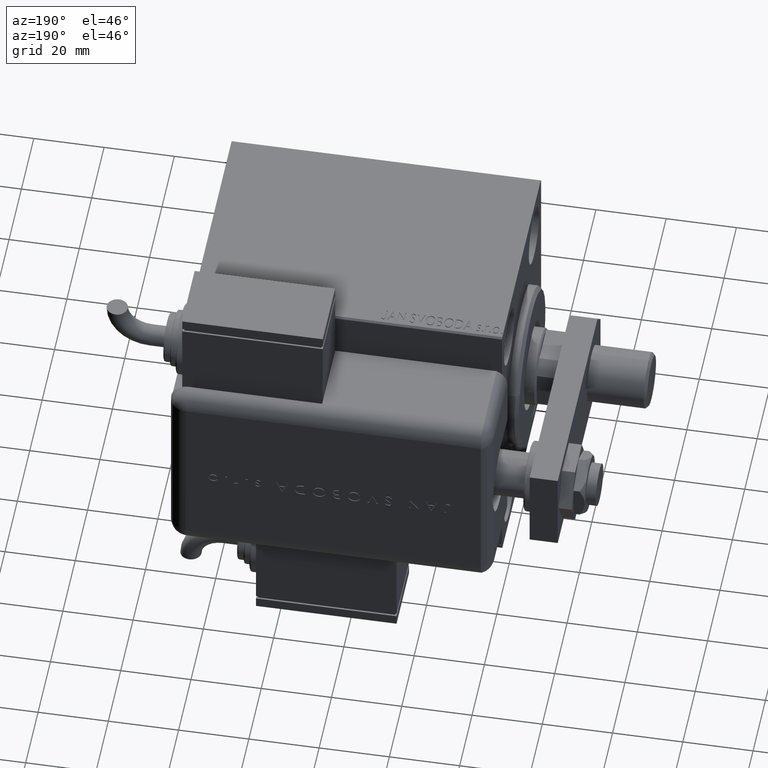
[diagram: clean part render]
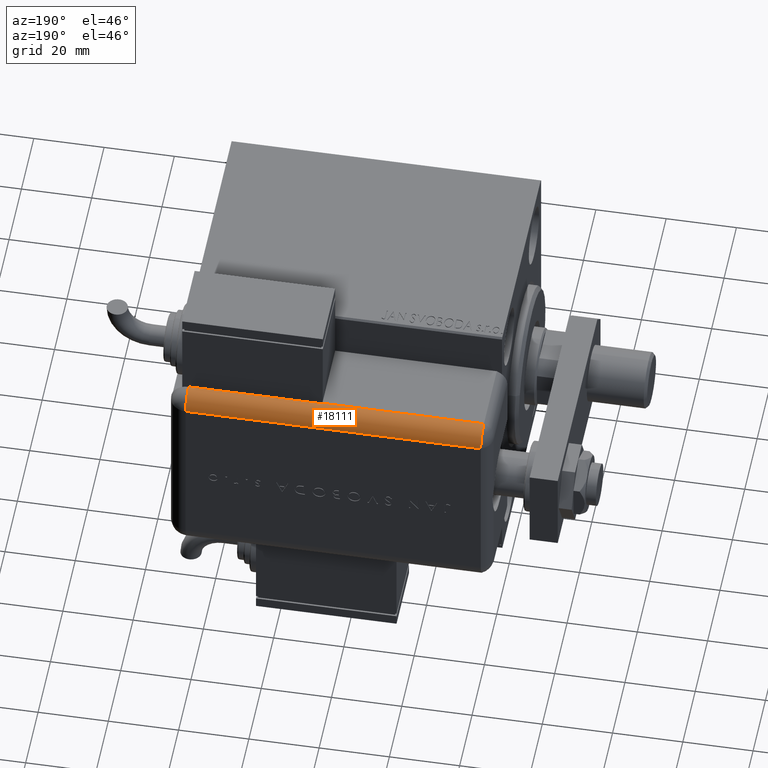
[diagram: same view with one face highlighted and labeled with its STEP entity id]
A machine part, auxiliary view. The second image highlights one B-rep face of the part: STEP entity #18111.
In plain terms, the highlighted cylindrical surface (edge-blend (fillet) strip) has radius 5 mm, axis along (1, -0, -0).
Its self-contained STEP definition (entity closure, byte-faithful):
#128 = CARTESIAN_POINT ( 'NONE',  ( 23.99999999999999289, 20.79999999999998295, 89.00000000000000000 ) ) ;
#517 = VERTEX_POINT ( 'NONE', #23790 ) ;
#2990 = DIRECTION ( 'NONE',  ( 0.000000000000000000, 0.000000000000000000, -1.000000000000000000 ) ) ;
#3142 = VERTEX_POINT ( 'NONE', #43792 ) ;
#3670 = CARTESIAN_POINT ( 'NONE',  ( 28.99999999999999645, 20.79999999999998295, 89.00000000000000000 ) ) ;
#5097 = EDGE_CURVE ( 'NONE', #517, #26305, #7553, .T. ) ;
#6324 = VERTEX_POINT ( 'NONE', #31189 ) ;
#7553 = LINE ( 'NONE', #26156, #57921 ) ;
#8374 = DIRECTION ( 'NONE',  ( -0.000000000000000000, -0.000000000000000000, 1.000000000000000000 ) ) ;
#8654 = AXIS2_PLACEMENT_3D ( 'NONE', #128, #8374, #37296 ) ;
#11929 = CARTESIAN_POINT ( 'NONE',  ( 23.99999999999999289, 25.79999999999998295, 5.000000000000004441 ) ) ;
#12384 = VECTOR ( 'NONE', #46370, 1000.000000000000000 ) ;
#13734 = DIRECTION ( 'NONE',  ( 0.000000000000000000, 0.000000000000000000, -1.000000000000000000 ) ) ;
#17369 = LINE ( 'NONE', #20735, #33884 ) ;
#17893 = EDGE_CURVE ( 'NONE', #3142, #25481, #18061, .T. ) ;
#18061 = LINE ( 'NONE', #27819, #12384 ) ;
#18111 = ADVANCED_FACE ( 'NONE', ( #32608 ), #55425, .T. ) ;
#18194 = VERTEX_POINT ( 'NONE', #3670 ) ;
#18763 = AXIS2_PLACEMENT_3D ( 'NONE', #36723, #40689, #27003 ) ;
#18825 = CARTESIAN_POINT ( 'NONE',  ( 28.99599839871871154, 20.99999999999999289, 43.00000000000000000 ) ) ;
#19358 = ORIENTED_EDGE ( 'NONE', *, *, #21565, .F. ) ;
#20183 = DIRECTION ( 'NONE',  ( -0.000000000000000000, 0.000000000000000000, -1.000000000000000000 ) ) ;
#20367 = ORIENTED_EDGE ( 'NONE', *, *, #5097, .F. ) ;
#20735 = CARTESIAN_POINT ( 'NONE',  ( 28.99999999999999645, 20.79999999999998295, 89.00000000000000000 ) ) ;
#21565 = EDGE_CURVE ( 'NONE', #25481, #6324, #36681, .T. ) ;
#23790 = CARTESIAN_POINT ( 'NONE',  ( 23.99999999999999289, 25.79999999999998295, 89.00000000000000000 ) ) ;
#25481 = VERTEX_POINT ( 'NONE', #18825 ) ;
#26156 = CARTESIAN_POINT ( 'NONE',  ( 23.99999999999999289, 25.79999999999998295, 89.00000000000000000 ) ) ;
#26210 = DIRECTION ( 'NONE',  ( -0.000000000000000000, -0.000000000000000000, 1.000000000000000000 ) ) ;
#26305 = VERTEX_POINT ( 'NONE', #11929 ) ;
#27003 = DIRECTION ( 'NONE',  ( -1.000000000000000000, 0.000000000000000000, 0.000000000000000000 ) ) ;
#27819 = CARTESIAN_POINT ( 'NONE',  ( 28.99599839871871154, 20.99999999999998579, 89.00000000000000000 ) ) ;
#28146 = ORIENTED_EDGE ( 'NONE', *, *, #47726, .F. ) ;
#31189 = CARTESIAN_POINT ( 'NONE',  ( 28.99999999999999645, 20.79999999999998295, 43.00000000000000000 ) ) ;
#31822 = AXIS2_PLACEMENT_3D ( 'NONE', #52444, #20183, #43020 ) ;
#32608 = FACE_OUTER_BOUND ( 'NONE', #44244, .T. ) ;
#33884 = VECTOR ( 'NONE', #26210, 1000.000000000000000 ) ;
#36681 = CIRCLE ( 'NONE', #31822, 5.000000000000000888 ) ;
#36723 = CARTESIAN_POINT ( 'NONE',  ( 23.99999999999999289, 20.79999999999998295, 5.000000000000004441 ) ) ;
#37296 = DIRECTION ( 'NONE',  ( -1.000000000000000000, 0.000000000000000000, 0.000000000000000000 ) ) ;
#39390 = ORIENTED_EDGE ( 'NONE', *, *, #17893, .F. ) ;
#39954 = EDGE_CURVE ( 'NONE', #3142, #26305, #42102, .T. ) ;
#40689 = DIRECTION ( 'NONE',  ( -0.000000000000000000, -0.000000000000000000, 1.000000000000000000 ) ) ;
#41427 = CARTESIAN_POINT ( 'NONE',  ( 23.99999999999999289, 20.79999999999998295, 89.00000000000000000 ) ) ;
#42102 = CIRCLE ( 'NONE', #18763, 5.000000000000000888 ) ;
#43020 = DIRECTION ( 'NONE',  ( 1.000000000000000000, -6.383782391594648845E-14, 0.000000000000000000 ) ) ;
#43792 = CARTESIAN_POINT ( 'NONE',  ( 28.99599839871871154, 21.00000000000000000, 5.000000000000004441 ) ) ;
#44244 = EDGE_LOOP ( 'NONE', ( #19358, #39390, #58235, #20367, #46855, #28146 ) ) ;
#44656 = CIRCLE ( 'NONE', #8654, 5.000000000000000888 ) ;
#46370 = DIRECTION ( 'NONE',  ( -0.000000000000000000, -0.000000000000000000, 1.000000000000000000 ) ) ;
#46855 = ORIENTED_EDGE ( 'NONE', *, *, #49153, .F. ) ;
#47726 = EDGE_CURVE ( 'NONE', #6324, #18194, #17369, .T. ) ;
#48369 = AXIS2_PLACEMENT_3D ( 'NONE', #41427, #13734, #50562 ) ;
#49153 = EDGE_CURVE ( 'NONE', #18194, #517, #44656, .T. ) ;
#50562 = DIRECTION ( 'NONE',  ( -1.000000000000000000, 0.000000000000000000, 0.000000000000000000 ) ) ;
#52444 = CARTESIAN_POINT ( 'NONE',  ( 23.99999999999999289, 20.79999999999998295, 43.00000000000000000 ) ) ;
#55425 = CYLINDRICAL_SURFACE ( 'NONE', #48369, 5.000000000000000888 ) ;
#57921 = VECTOR ( 'NONE', #2990, 1000.000000000000000 ) ;
#58235 = ORIENTED_EDGE ( 'NONE', *, *, #39954, .T. ) ;